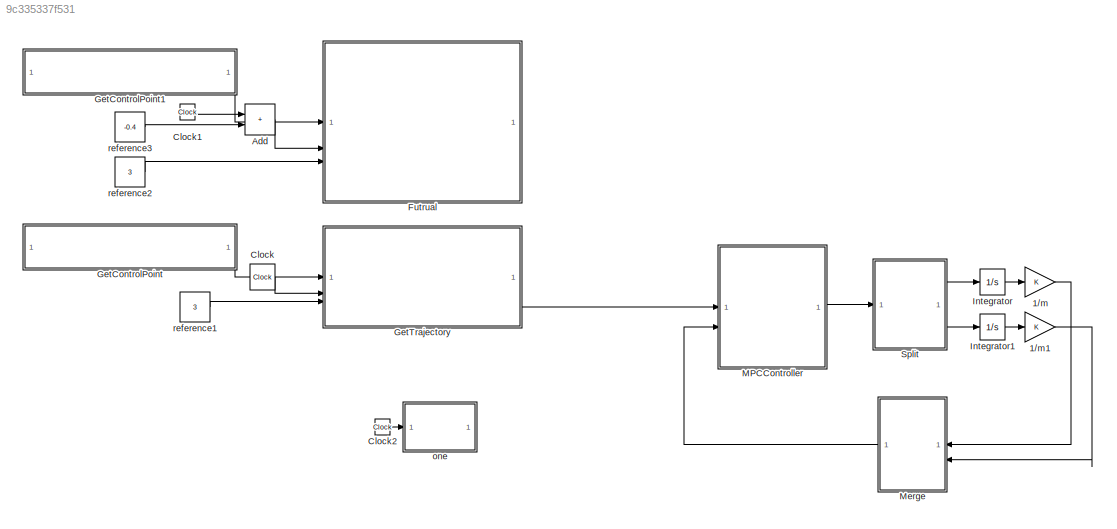
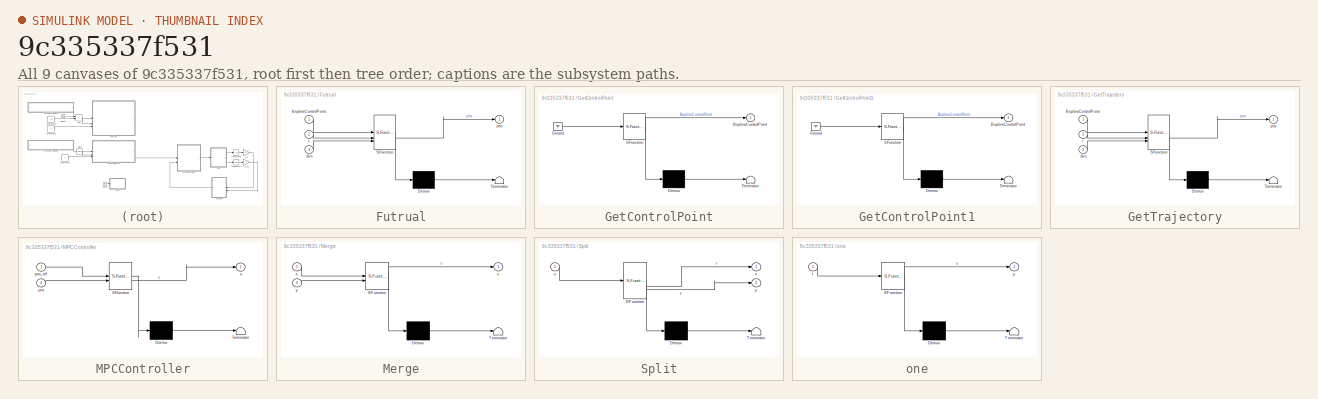
[diagram: thumbnail index - all 9 canvases of the model, root first then tree order]
MODEL slx_9c335337f531
KIND model
CONFIG AbsTol = auto
CONFIG EnableMultiTasking = off
CONFIG FixedStep = 0.01
CONFIG MaxStep = auto
CONFIG MinStep = auto
CONFIG RelTol = 1e-3
CONFIG SampleTimeConstraint = Unconstrained
CONFIG SolverName = FixedStepAuto
CONFIG StartTime = 0.0
CONFIG StopTime = 10
BLOCK [Gain] 1//m
BLOCK [Gain] 1//m1
BLOCK [Sum] Add
  IconShape = rectangular
BLOCK [Clock] Clock
  DisplayTime = on
BLOCK [Clock] Clock1
  DisplayTime = on
BLOCK [Clock] Clock2
  DisplayTime = on
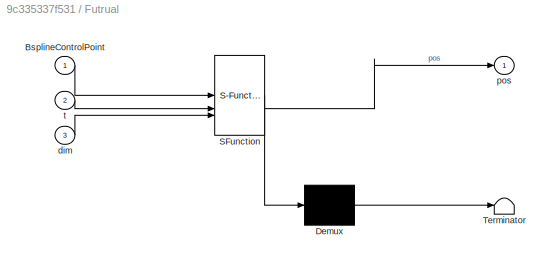
BLOCK [SubSystem] Futrual
  ErrorFcn = Stateflow.Translate.translate
  PermitHierarchicalResolution = ExplicitOnly
  SFBlockType = MATLAB Function
  TreatAsAtomicUnit = on
BLOCK [Demux] Futrual/ Demux 
  Outputs = 1
BLOCK [S-Function] Futrual/ SFunction 
  EnableBusSupport = on
  FunctionName = sf_sfun
  PortCounts = [3 2]
  SFcnIsStateOwnerBlock = off
  SFunctionDeploymentMode = off
  Tag = Stateflow S-Function 7
BLOCK [Terminator] Futrual/ Terminator 
BLOCK [Inport] Futrual/BsplineControlPoint
BLOCK [Inport] Futrual/dim
  Port = 3
BLOCK [Outport] Futrual/pos
BLOCK [Inport] Futrual/t
  Port = 2
BLOCK [SubSystem] GetControlPoint
  ErrorFcn = Stateflow.Translate.translate
  PermitHierarchicalResolution = ExplicitOnly
  SFBlockType = MATLAB Function
  TreatAsAtomicUnit = on
BLOCK [Demux] GetControlPoint/ Demux 
  Outputs = 1
BLOCK [Ground] GetControlPoint/ Ground 
BLOCK [S-Function] GetControlPoint/ SFunction 
  EnableBusSupport = on
  FunctionName = sf_sfun
  PortCounts = [1 2]
  SFcnIsStateOwnerBlock = off
  SFunctionDeploymentMode = off
  Tag = Stateflow S-Function 3
BLOCK [Terminator] GetControlPoint/ Terminator 
BLOCK [Outport] GetControlPoint/BsplineControlPoint
BLOCK [SubSystem] GetControlPoint1
  ErrorFcn = Stateflow.Translate.translate
  PermitHierarchicalResolution = ExplicitOnly
  SFBlockType = MATLAB Function
  TreatAsAtomicUnit = on
BLOCK [Demux] GetControlPoint1/ Demux 
  Outputs = 1
BLOCK [Ground] GetControlPoint1/ Ground 
BLOCK [S-Function] GetControlPoint1/ SFunction 
  EnableBusSupport = on
  FunctionName = sf_sfun
  PortCounts = [1 2]
  SFcnIsStateOwnerBlock = off
  SFunctionDeploymentMode = off
  Tag = Stateflow S-Function 6
BLOCK [Terminator] GetControlPoint1/ Terminator 
BLOCK [Outport] GetControlPoint1/BsplineControlPoint
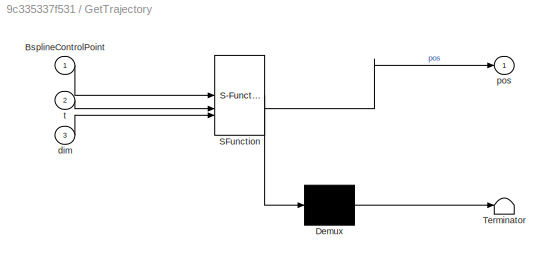
BLOCK [SubSystem] GetTrajectory
  ErrorFcn = Stateflow.Translate.translate
  PermitHierarchicalResolution = ExplicitOnly
  SFBlockType = MATLAB Function
  TreatAsAtomicUnit = on
BLOCK [Demux] GetTrajectory/ Demux 
  Outputs = 1
BLOCK [S-Function] GetTrajectory/ SFunction 
  EnableBusSupport = on
  FunctionName = sf_sfun
  PortCounts = [3 2]
  SFcnIsStateOwnerBlock = off
  SFunctionDeploymentMode = off
  Tag = Stateflow S-Function 1
BLOCK [Terminator] GetTrajectory/ Terminator 
BLOCK [Inport] GetTrajectory/BsplineControlPoint
BLOCK [Inport] GetTrajectory/dim
  Port = 3
BLOCK [Outport] GetTrajectory/pos
BLOCK [Inport] GetTrajectory/t
  Port = 2
BLOCK [Integrator] Integrator
  ContinuousStateAttributes = 'x'
BLOCK [Integrator] Integrator1
  ContinuousStateAttributes = 'x'
BLOCK [SubSystem] MPCController
  ErrorFcn = Stateflow.Translate.translate
  PermitHierarchicalResolution = ExplicitOnly
  SFBlockType = MATLAB Function
  TreatAsAtomicUnit = on
BLOCK [Demux] MPCController/ Demux 
  Outputs = 1
BLOCK [S-Function] MPCController/ SFunction 
  EnableBusSupport = on
  FunctionName = sf_sfun
  PortCounts = [2 2]
  SFcnIsStateOwnerBlock = off
  SFunctionDeploymentMode = off
  Tag = Stateflow S-Function 4
BLOCK [Terminator] MPCController/ Terminator 
BLOCK [Inport] MPCController/pos
  Port = 2
BLOCK [Inport] MPCController/pos_ref
BLOCK [Outport] MPCController/u
BLOCK [SubSystem] Merge
  ErrorFcn = Stateflow.Translate.translate
  PermitHierarchicalResolution = ExplicitOnly
  SFBlockType = MATLAB Function
  TreatAsAtomicUnit = on
BLOCK [Demux] Merge/ Demux 
  Outputs = 1
BLOCK [S-Function] Merge/ SFunction 
  EnableBusSupport = on
  FunctionName = sf_sfun
  PortCounts = [2 2]
  SFcnIsStateOwnerBlock = off
  SFunctionDeploymentMode = off
  Tag = Stateflow S-Function 5
BLOCK [Terminator] Merge/ Terminator 
BLOCK [Outport] Merge/u
BLOCK [Inport] Merge/x
BLOCK [Inport] Merge/y
  Port = 2
BLOCK [SubSystem] Split
  ErrorFcn = Stateflow.Translate.translate
  PermitHierarchicalResolution = ExplicitOnly
  SFBlockType = MATLAB Function
  TreatAsAtomicUnit = on
BLOCK [Demux] Split/ Demux 
  Outputs = 1
BLOCK [S-Function] Split/ SFunction 
  EnableBusSupport = on
  FunctionName = sf_sfun
  PortCounts = [1 3]
  SFcnIsStateOwnerBlock = off
  SFunctionDeploymentMode = off
  Tag = Stateflow S-Function 2
BLOCK [Terminator] Split/ Terminator 
BLOCK [Inport] Split/u
BLOCK [Outport] Split/x
BLOCK [Outport] Split/y
  Port = 2
BLOCK [SubSystem] one
  ErrorFcn = Stateflow.Translate.translate
  PermitHierarchicalResolution = ExplicitOnly
  SFBlockType = MATLAB Function
  TreatAsAtomicUnit = on
BLOCK [Demux] one/ Demux 
  Outputs = 1
BLOCK [S-Function] one/ SFunction 
  EnableBusSupport = on
  FunctionName = sf_sfun
  PortCounts = [1 2]
  SFcnIsStateOwnerBlock = off
  SFunctionDeploymentMode = off
  Tag = Stateflow S-Function 8
BLOCK [Terminator] one/ Terminator 
BLOCK [Inport] one/t
BLOCK [Outport] one/y
BLOCK [Constant] reference1
  Value = 3
BLOCK [Constant] reference2
  Value = 3
BLOCK [Constant] reference3
  Value = -0.4
LINE 1//m1:1 -> Merge:2
LINE 1//m:1 -> Merge:1
LINE Add:1 -> Futrual:2
LINE Clock1:1 -> Add:1
LINE Clock2:1 -> one:1
LINE Clock:1 -> GetTrajectory:2
LINE GetControlPoint1:1 -> Futrual:1
LINE GetControlPoint:1 -> GetTrajectory:1
LINE GetTrajectory:1 -> MPCController:1
LINE Integrator1:1 -> 1//m1:1
LINE Integrator:1 -> 1//m:1
LINE MPCController:1 -> Split:1
LINE Merge:1 -> MPCController:2
LINE Split:1 -> Integrator:1
LINE Split:2 -> Integrator1:1
LINE reference1:1 -> GetTrajectory:3
LINE reference2:1 -> Futrual:3
LINE reference3:1 -> Add:2
CHART GetTrajectory states=1 transitions=1
  STATE_LABEL 'eML_blk_kernel()'
  STATE_LABEL 'SCRIPT:\nfunction pos = GetTrajectory(BsplineControlPoint,t,dim)\nM_k = [1 / 6, 4 / 6, 1 / 6, 0;\n    -3 / 6, 0, 3 / 6, 0;\n    3 / 6, -6 / 6, 3 / 6, 0;\n    -1 / 6, 3 / 6, -3 / 6, 1 / 6 ];\nx = 0;\ny = 0;\npos = [0 0]\nt = min(t,size(BsplineControlPoint,1) - dim);\n    u = t - floor(t);\n    n = floor(t) + 1;\n    pos(1) = [1,u,u*u,u*u*u]*M_k*BsplineControlPoint(n:n + 3,1);\n    pos(2)  = [1,u,u*u,u*u*u]*M_k*...<+36ch>'
CHART Split states=1 transitions=1
  STATE_LABEL 'eML_blk_kernel()'
  STATE_LABEL 'SCRIPT:\nfunction [x,y] = SplitU(u)\nx = u(1);\ny = u(2);'
CHART GetControlPoint states=1 transitions=1
  STATE_LABEL 'eML_blk_kernel()'
  STATE_LABEL 'SCRIPT:\nfunction BsplineControlPoint = GetControlPoint\n   \n    BsplineControlPoint = [\n        82.6672205185137\t503.388274216037\n        -3.83361025925683\t594.305862891981\n        82.6672205185137\t503.388274216037\n        137.367054362960\t442.371791951226\n        191.865226651865\t385.590487038303\n        232.772039029582\t339.666259895562\n        272.646617229806\t332.944473379449\n        295.441492...<+413ch>'
CHART MPCController states=1 transitions=1
  STATE_LABEL 'eML_blk_kernel()'
  STATE_LABEL "SCRIPT:\nfunction u = MPCcontroller(pos_ref, pos)\n%参数设置\nT    = 0.01;           %控制周期10ms\np    = 40;            %控制时域（预测时域）\nQ    = 10*eye(2*p);   %累计误差权重\nW    = 0.0001*eye(2*p); %控制输出权重\numax = inf;           %控制量限制，即最大的力\nRk   = zeros(2*p,1);  %参考值序列\nRk(1:2:end) = pos_ref(1);    \nRk(2:2:end) = pos_ref(2);\n%构建中间变量\nxk    = [pos'];    %xk\nA_    = [1 0;0 1];    %离散化预测模型参数A\nB_    = [T 0;0 T];      %离散化预测模...<+427ch>"
CHART Merge states=1 transitions=1
  STATE_LABEL 'eML_blk_kernel()'
  STATE_LABEL 'SCRIPT:\nfunction u = MergeU(x,y)\nu = [x,y];'
CHART GetControlPoint1 states=1 transitions=1
  STATE_LABEL 'eML_blk_kernel()'
  STATE_LABEL 'SCRIPT:\nfunction BsplineControlPoint = GetControlPoint\n   \n    BsplineControlPoint = [\n        82.6672205185137\t503.388274216037\n        -3.83361025925683\t594.305862891981\n        82.6672205185137\t503.388274216037\n        137.367054362960\t442.371791951226\n        191.865226651865\t385.590487038303\n        232.772039029582\t339.666259895562\n        272.646617229806\t332.944473379449\n        295.441492...<+413ch>'
CHART Futrual states=1 transitions=1
  STATE_LABEL 'eML_blk_kernel()'
  STATE_LABEL 'SCRIPT:\nfunction pos = GetTrajectory(BsplineControlPoint,t,dim)\nM_k = [1 / 6, 4 / 6, 1 / 6, 0;\n    -3 / 6, 0, 3 / 6, 0;\n    3 / 6, -6 / 6, 3 / 6, 0;\n    -1 / 6, 3 / 6, -3 / 6, 1 / 6 ];\nx = 0;\ny = 0;\npos = [0 0]\nt = max(0,min(t,size(BsplineControlPoint,1) - dim));\n    u = t - floor(t);\n    n = floor(t) + 1;\n    pos(1) = [1,u,u*u,u*u*u]*M_k*BsplineControlPoint(n:n + 3,1);\n    pos(2)  = [1,u,u*u,u*u*...<+43ch>'
CHART one states=1 transitions=1
  STATE_LABEL 'eML_blk_kernel()'
  STATE_LABEL 'SCRIPT:\nfunction y = one(t)\n    y = [t,10];\n'
CHART  states=0 transitions=0
CHART  states=0 transitions=0
CHART  states=0 transitions=0
CHART  states=0 transitions=0
CHART  states=0 transitions=0
CHART  states=0 transitions=0
CHART  states=0 transitions=0
CHART  states=0 transitions=0
